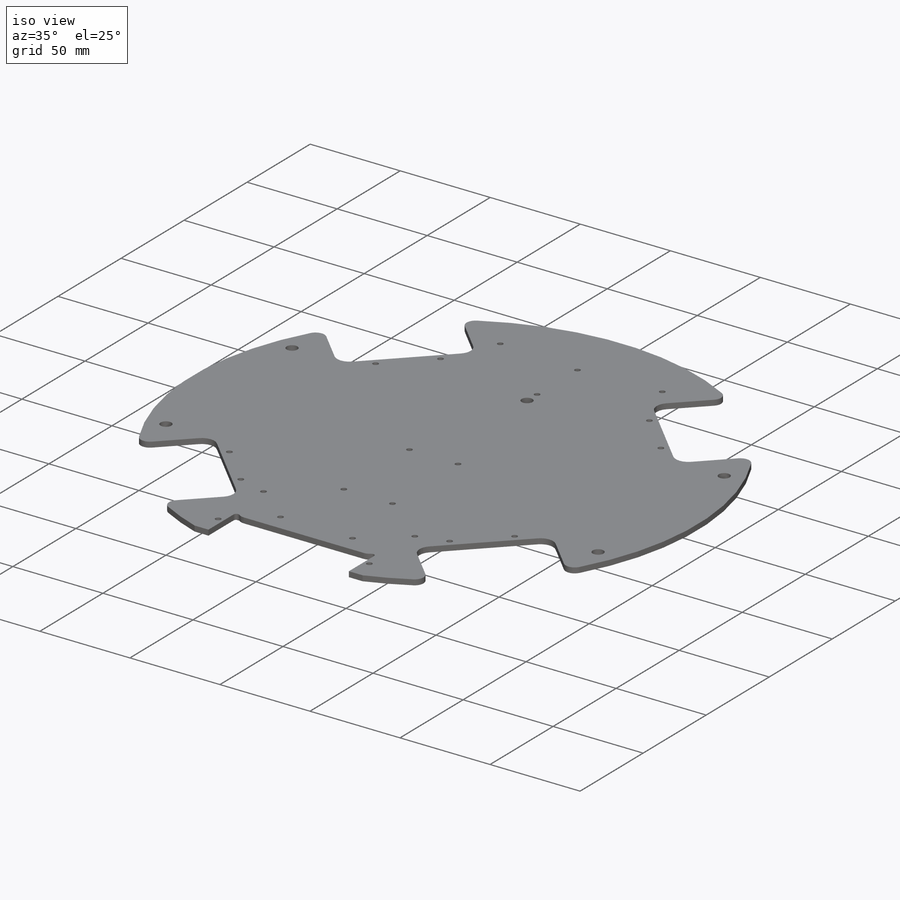
[diagram: iso view]
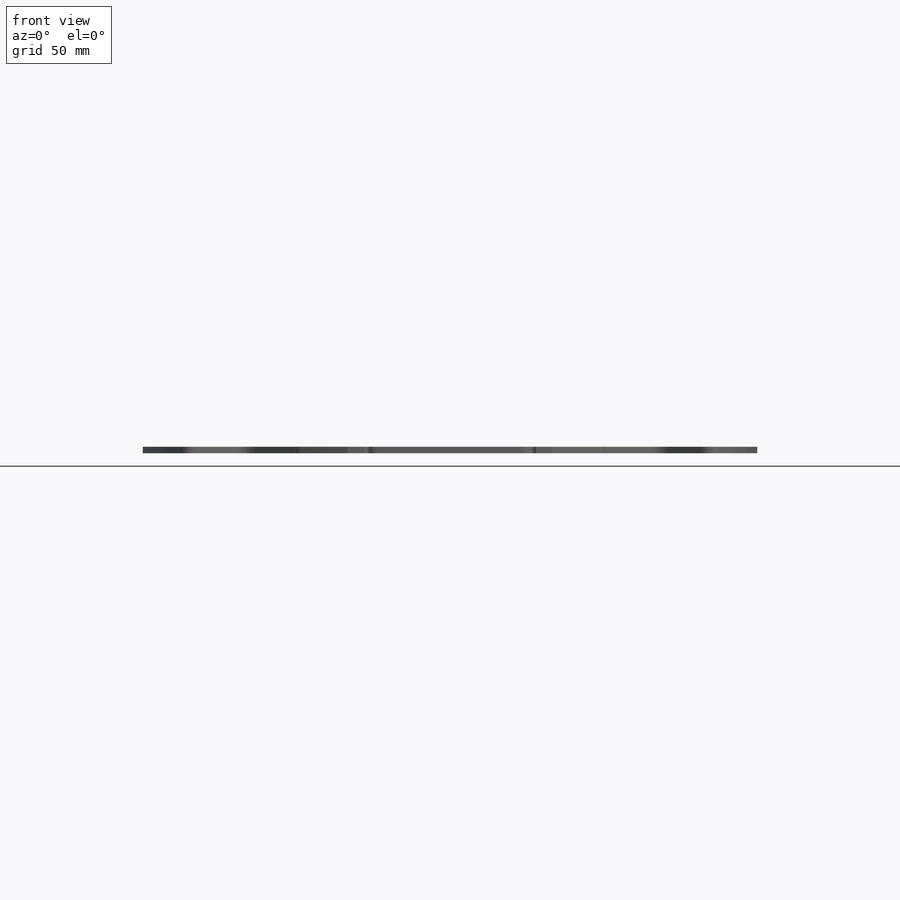
[diagram: front view]
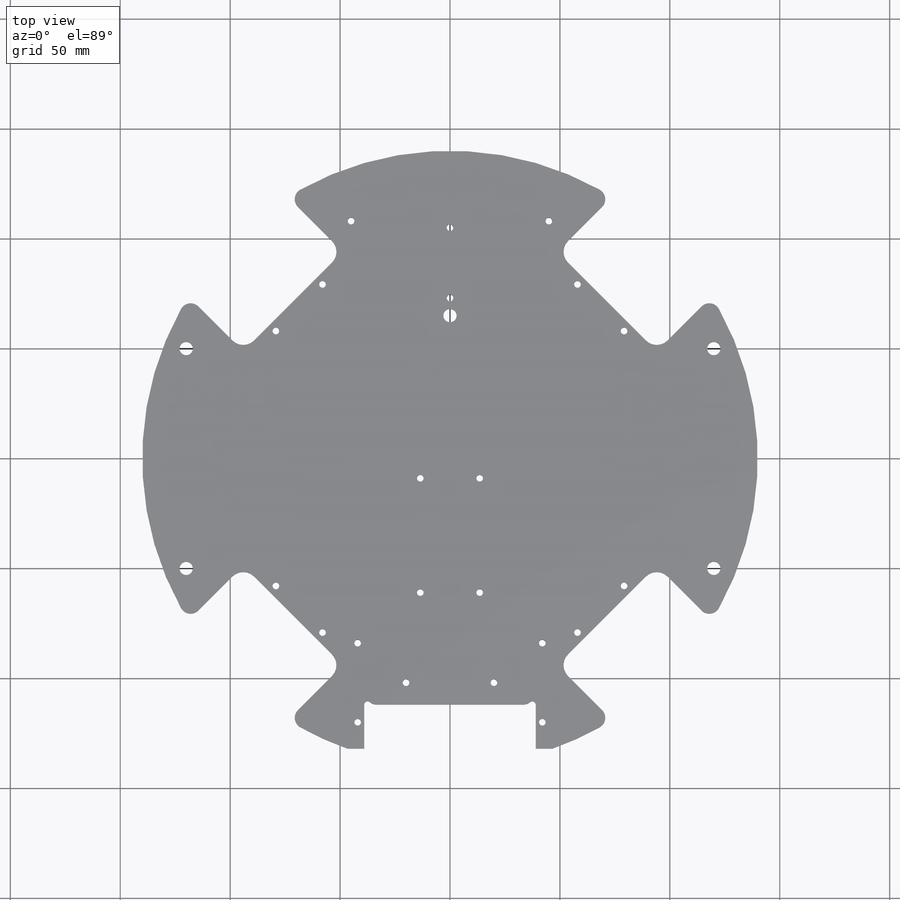
[diagram: top view]
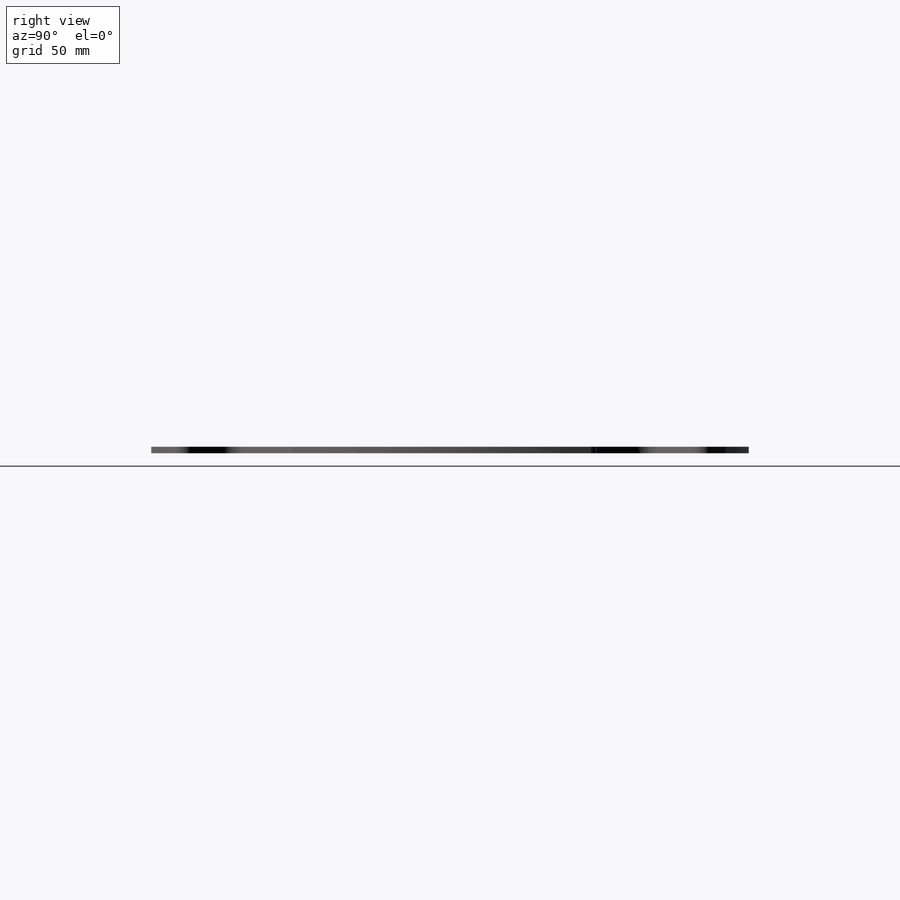
[diagram: right view]
SOLIDWORKS PART (.sldprt)
format: sldprt  version: not decoded by parser v0  size: 493,568 bytes
history: native  units: mm
features: sketch x9, cut_extrude x8, fillet x2, material x1, extrude x1, pattern_circular x1 (+11 scaffold rows collapsed)
feature tree (33):
  scaffold x11  (default folders/planes/origin — collapsed)
  material  "1060 Alloy"
  sketch  "Sketch1"  dims[D1=280.0mm]
  extrude  "Boss-Extrude1"  Depth=3mm
  sketch  "Sketch7"  dims[c1.D4=6.95mm c1.D1=101.0mm c1.D2=64.0mm c1.D3=120.0mm c2.D3=135.0deg c2.D5=50.1mm]
  cut_extrude  "Cut-Extrude4"  [1 undecoded]
  sketch  "Sketch9"  dims[c1.D4=3.0mm c1.D1=6.0mm c1.D2=~6.098397mm c2.D1=3.0mm c2.D2=10.0mm c2.D3=10.0mm c2.D5=3.0mm c2.D6=30.1mm c3.D2=30.0mm c3.D3=17.0mm c3.D6=17.0mm c3.D1=4.0mm c3.D5=4.0mm]
  cut_extrude  "Cut-Extrude6"  [1 undecoded]
  fillet  "Fillet1"  Radius=5mm
  pattern_circular  "CirPattern1"  Count=4 Angle=360deg
  sketch  "Sketch2"  dims[c1.D8=6.0mm c1.D5=1.5mm c1.D6=5.0mm c1.D1=85.0mm c1.D2=20.0mm c1.D3=78.0mm c1.D4=12.0mm c2.D5=12.0mm c2.D6=50.0mm c2.D7=~98.361578mm c2.D8=106.0mm c3.D7=106.0mm c3.D4=62.0mm c3.D6=31.0mm c4.D7=90.0mm c4.D9=~34.902631mm c4.D5=80.0mm c4.D1=127.0mm c4.D4=~14.38093mm c5.D1=8.0mm c5.D4=~7.647615mm c5.D7=132.0mm]
  cut_extrude  "Cut-Extrude1"  [1 undecoded]
  fillet  "Fillet3"  Radius=1.5mm
  sketch  "Sketch10"  dims[D3=3.0mm D1=13.5mm D2=27.0mm D4=61.0mm D5=52.0mm D6=~63.031842mm]
  cut_extrude  "Cut-Extrude7"  [1 undecoded]
  sketch  "Sketch11"  dims[D1=3.0mm D2=40.0mm D3=10.0mm D4=20.0mm]
  cut_extrude  "Cut-Extrude8"  [1 undecoded]
  sketch  "Sketch13"  dims[c1.D1=3.0mm c1.D2=12.0mm c1.D3=6.0mm c1.D4=3.0mm c1.D5=3.0mm c2.D3=36.0mm c2.D4=3.0mm c2.D5=3.0mm c2.D2=12.0mm c3.D4=3.0mm c3.D5=3.0mm c3.D6=86.0mm]
  cut_extrude  "Cut-Extrude9"  [1 undecoded]
  sketch  "Sketch16"  dims[c1.D2=3.0mm c1.D11=2.0mm c2.D2=3.0mm c2.D5=6.0mm c2.D1=73.0mm c2.D3=108.0mm c2.D4=90.0mm c3.D5=45.0mm c3.D6=32.0mm c3.D7=15.0mm c3.D8=35.0mm c3.D9=7.5mm c3.D10=4.0mm c3.D1=73.0mm c4.D7=65.0mm]
  cut_extrude  "Cut-Extrude12"  [1 undecoded]
  sketch  "Sketch17"  dims[D1=6.0mm D2=50.0mm D3=50.0mm D4=120.0mm D5=120.0mm]
  cut_extrude  "Cut-Extrude13"  [1 undecoded]
decode coverage: 13 of 21 modeling features carry decoded parameters
note: ~ marks probable driven/reference dimensions
note: 8 parameter values undecoded
summary: no parameter record found for 8 features
note: suppression state not decoded; provenance and decode notes live in map.json
